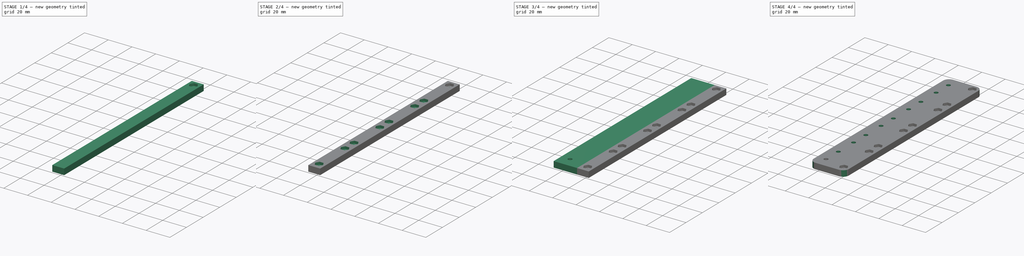
[diagram: build sequence overview — one tinted view per stage of 4, left to right]
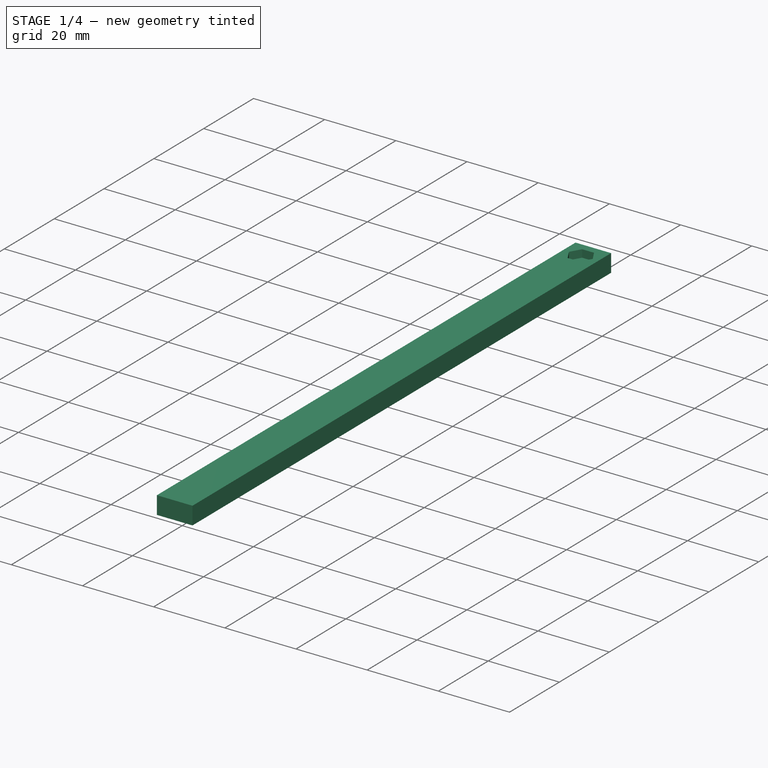
[diagram: stage 1 of 4 — iso view after this stage's code; geometry added in this stage tinted green]
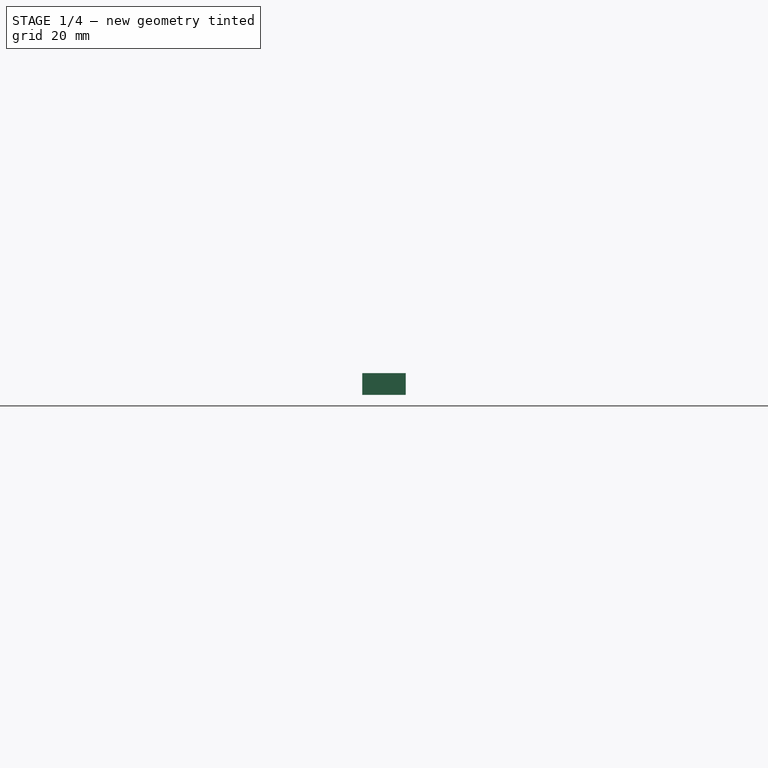
[diagram: stage 1 of 4 — front view after this stage's code; geometry added in this stage tinted green]
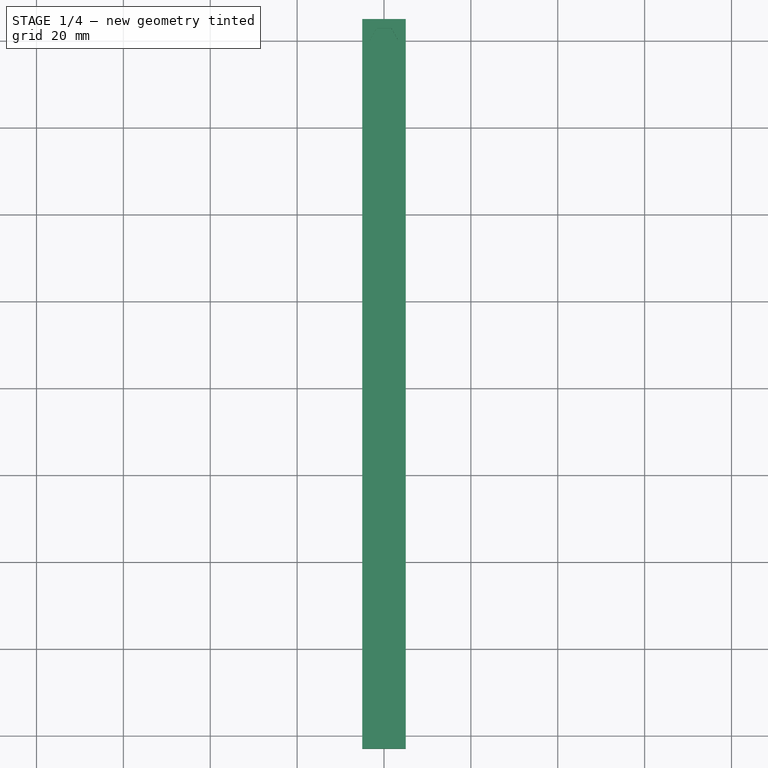
[diagram: stage 1 of 4 — top view after this stage's code; geometry added in this stage tinted green]
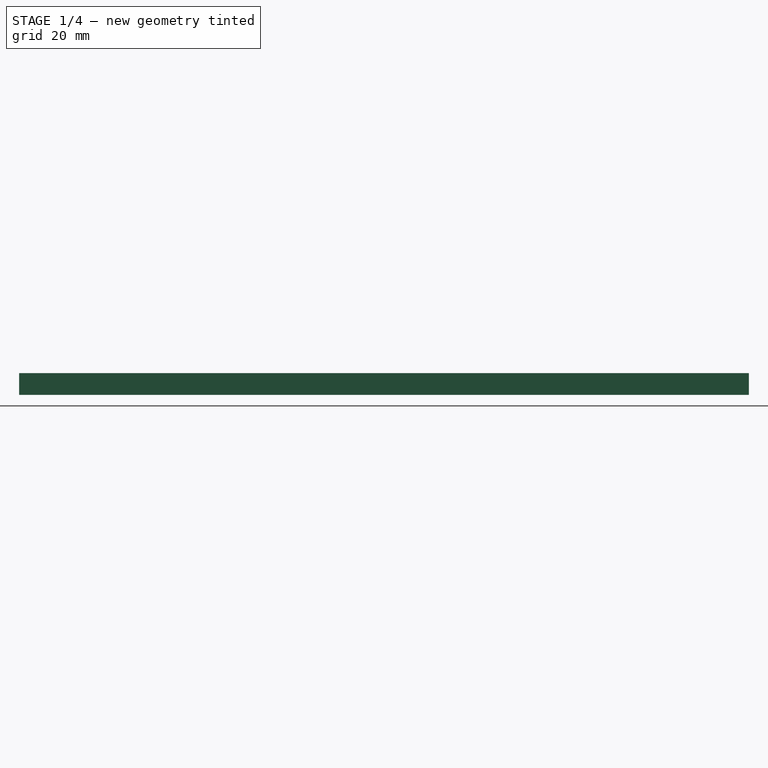
[diagram: stage 1 of 4 — right view after this stage's code; geometry added in this stage tinted green]
FCSTD DOCUMENT  (FreeCAD 0.19R)
Label: Rack_with_M3
License: All rights reserved
LicenseURL: http://en.wikipedia.org/wiki/All_rights_reserved
objects: Sketcher::SketchObject×6, PartDesign::LinearPattern×4, PartDesign::Pad×2, PartDesign::Pocket×2, PartDesign::Hole×2, PartDesign::MultiTransform×2, PartDesign::Fillet×1, PartDesign::Body×1
note: 27 computed .brp shape members not serialized (recipe doc carries the construction recipe); baked Part::Feature solids carry a one-line shape summary decoded from their .brp

FEATURE [Sketcher::SketchObject] Sketch  label="rod_base_sketch"
  FullyConstrained = true
  MapMode = 5
  Support = -> [XY_Plane]
  sketch-geometry (4):
    g0: LineSegment StartX=-5 StartY=5 StartZ=0 EndX=5 EndY=5 EndZ=0
    g1: LineSegment StartX=5 StartY=5 StartZ=0 EndX=5 EndY=-163 EndZ=0
    g2: LineSegment StartX=5 StartY=-163 StartZ=0 EndX=-5 EndY=-163 EndZ=0
    g3: LineSegment StartX=-5 StartY=-163 StartZ=0 EndX=-5 EndY=5 EndZ=0
  constraints (11):
    c: Coincident(g0,g1)
    c: Coincident(g1,g2)
    c: Coincident(g2,g3)
    c: Coincident(g3,g0)
    c: Horizontal(g2)
    c: Vertical(g1)
    c: Vertical(g3)
    c: Symmetric(g0,g0,g-2)
    c: DistanceX(g0,g0) = 10
    c: Distance(g-1,g0) = 5
    c: DistanceY(g1,g1) = 168
FEATURE [PartDesign::Pad] Pad  label="rod_base"
  Direction = (1,1,1)
  Length = 5
  Length2 = 100
  Profile = -> Sketch
  Type = 0
FEATURE [Sketcher::SketchObject] Sketch001  label="rod_M3_hex_sketch"
  FullyConstrained = true
  MapMode = 5
  Placement = pos=(0,0,5) rot=(0,0,1;0rad)
  Support = -> [Pad]
  sketch-geometry (7):
    g0: LineSegment StartX=3.34863 StartY=0 StartZ=0 EndX=1.67432 EndY=2.9 EndZ=0
    g1: LineSegment StartX=1.67432 StartY=2.9 StartZ=0 EndX=-1.67432 EndY=2.9 EndZ=0
    g2: LineSegment StartX=-1.67432 StartY=2.9 StartZ=0 EndX=-3.34863 EndY=2.09e-14 EndZ=0
    g3: LineSegment StartX=-3.34863 StartY=2.1e-14 StartZ=0 EndX=-1.67432 EndY=-2.9 EndZ=0
    g4: LineSegment StartX=-1.67432 StartY=-2.9 StartZ=0 EndX=1.67432 EndY=-2.9 EndZ=0
    g5: LineSegment StartX=1.67432 StartY=-2.9 StartZ=0 EndX=3.34863 EndY=0 EndZ=0
    g6: Circle CenterX=0 CenterY=0 CenterZ=0 NormalX=0 NormalY=0 NormalZ=1 AngleXU=0 Radius=3.34863
  constraints (16):
    c: Coincident(g0,g1)
    c: Coincident(g1,g2)
    c: Coincident(g2,g3)
    c: Coincident(g3,g4)
    c: Coincident(g4,g5)
    c: Coincident(g5,g0)
    c: Equal(g0, g1-g5) x5
    c: PointOnObject(g0,g6)
    c: PointOnObject(g1,g6)
    c: PointOnObject(g2,g6)
    c: PointOnObject(g3,g6)
    c: PointOnObject(g4,g6)
    c: PointOnObject(g5,g6)
    c: Coincident(g6,g-1)
    c: PointOnObject(g5,g-1)
    c: DistanceY(g4,g0) = 5.8
FEATURE [PartDesign::Pocket] Pocket  label="rod_M3_hex"
  BaseFeature = -> Pad
  Length = 2.15
  Length2 = 100
  Profile = -> Sketch001
  Type = 0
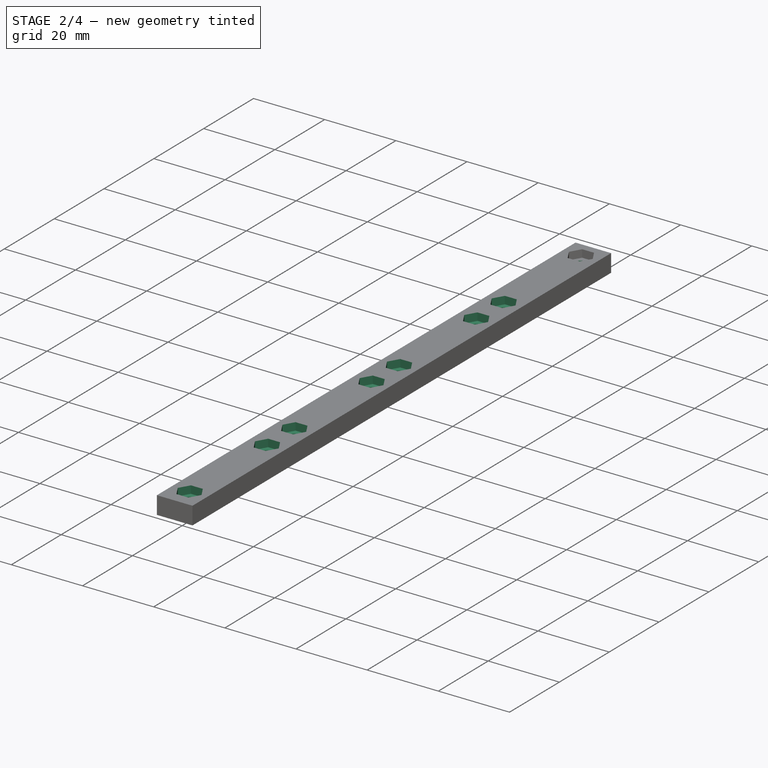
[diagram: stage 2 of 4 — iso view after this stage's code; geometry added in this stage tinted green]
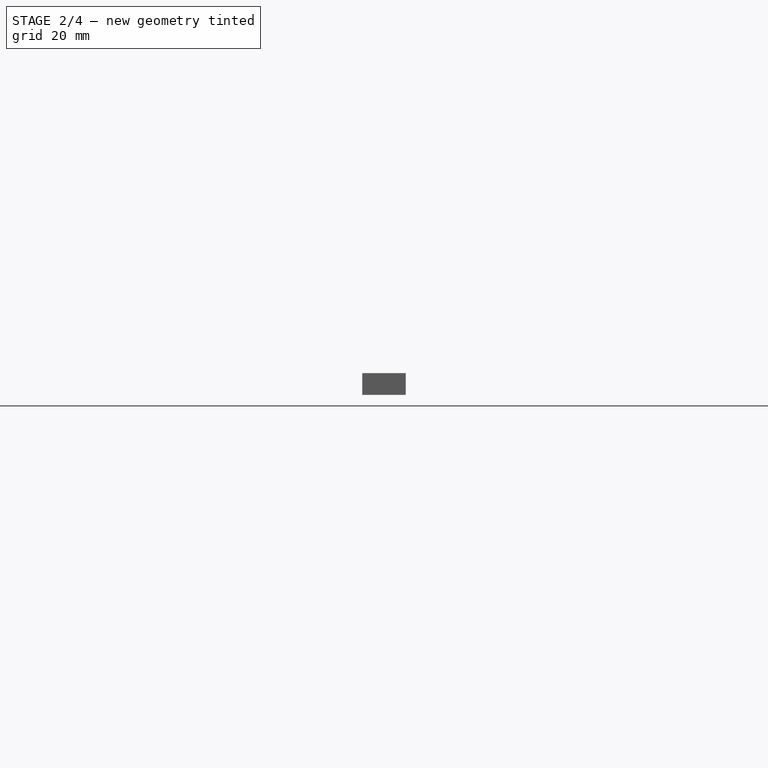
[diagram: stage 2 of 4 — front view after this stage's code; geometry added in this stage tinted green]
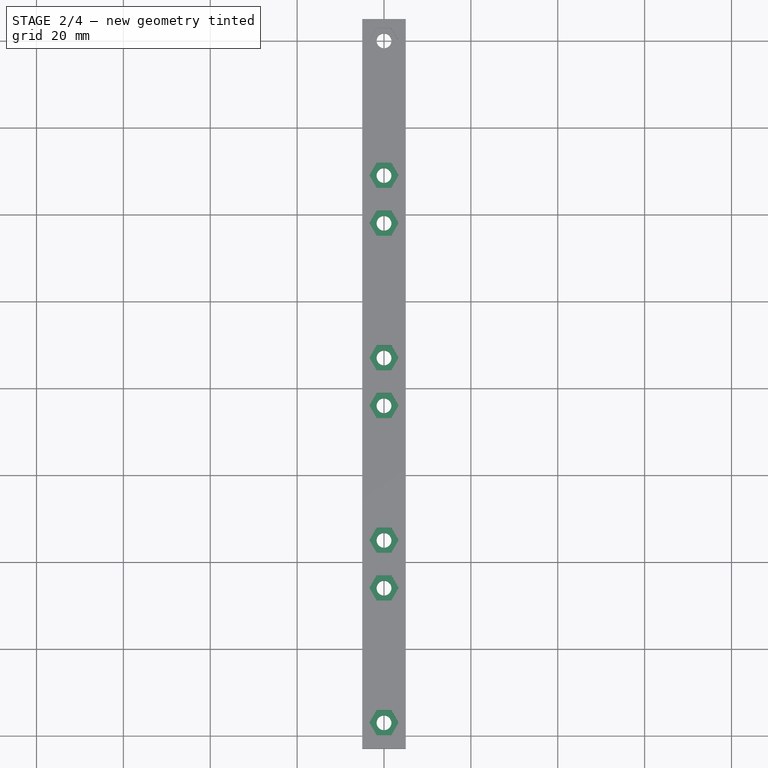
[diagram: stage 2 of 4 — top view after this stage's code; geometry added in this stage tinted green]
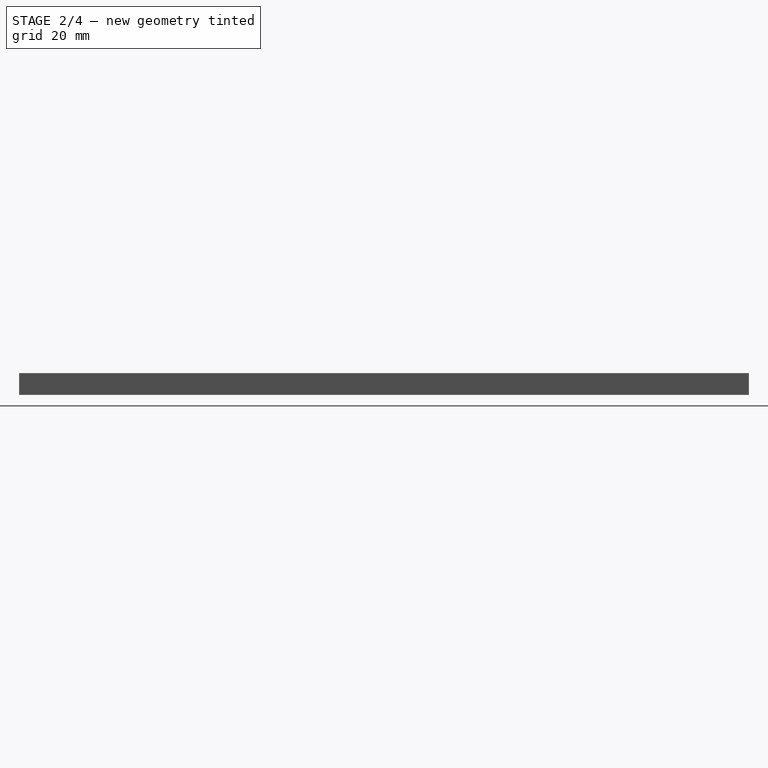
[diagram: stage 2 of 4 — right view after this stage's code; geometry added in this stage tinted green]
FEATURE [Sketcher::SketchObject] Sketch002  label="rod_M3_hole_sketch"
  FullyConstrained = true
  MapMode = 5
  Placement = pos=(0,0,2.85) rot=(0,0,1;0rad)
  Support = -> [Pocket]
  sketch-geometry (1):
    g0: Circle CenterX=0 CenterY=0 CenterZ=0 NormalX=0 NormalY=0 NormalZ=1 AngleXU=0 Radius=1.7
  constraints (2):
    c: Coincident(g0,g-1)
    c: Radius(g0) = 1.7
FEATURE [PartDesign::Hole] Hole  label="rod_M3_hole"
  BaseFeature = -> Pocket
  Depth = 25
  DepthType = 1
  Diameter = 3.4
  DrillForDepth = false
  DrillPoint = 1
  DrillPointAngle = 118
  HoleCutCountersinkAngle = 90
  HoleCutCustomValues = false
  HoleCutDepth = 0
  HoleCutDiameter = 6.1
  HoleCutType = 0
  ModelActualThread = false
  Profile = -> Sketch002
  Tapered = false
  TaperedAngle = 90
  ThreadAngle = 0
  ThreadClass = 0
  ThreadCutOffInner = 0
  ThreadCutOffOuter = 0
  ThreadDirection = 0
  ThreadFit = 0
  ThreadPitch = 0
  ThreadSize = 9
  ThreadType = 1
  Threaded = false
FEATURE [PartDesign::LinearPattern] LinearPattern
  Direction = -> Y_Axis
  Length = 31
  Occurrences = 2
  Reversed = true
FEATURE [PartDesign::LinearPattern] LinearPattern001
  Direction = -> Y_Axis
  Length = 126
  Occurrences = 4
  Reversed = true
FEATURE [PartDesign::MultiTransform] MultiTransform  label="rod_M3_system"
  BaseFeature = -> Hole
  Originals = -> [Pocket,Hole]
  Transformations = -> [LinearPattern,LinearPattern001]
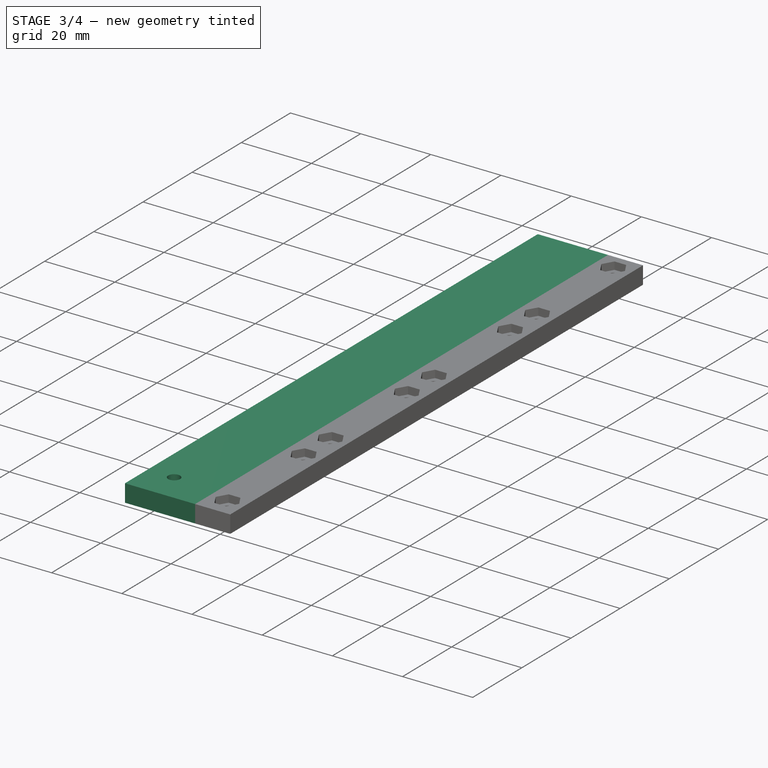
[diagram: stage 3 of 4 — iso view after this stage's code; geometry added in this stage tinted green]
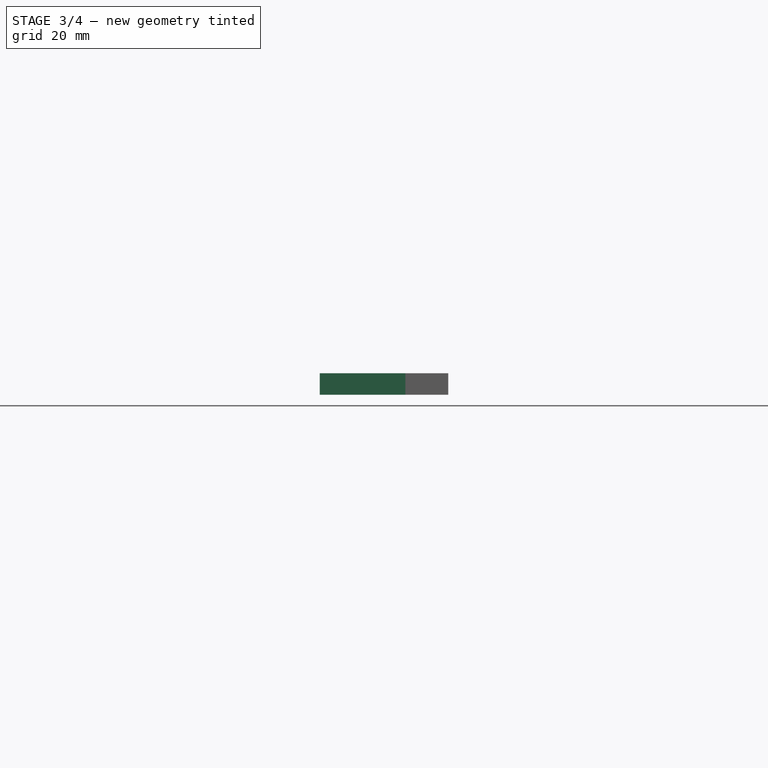
[diagram: stage 3 of 4 — front view after this stage's code; geometry added in this stage tinted green]
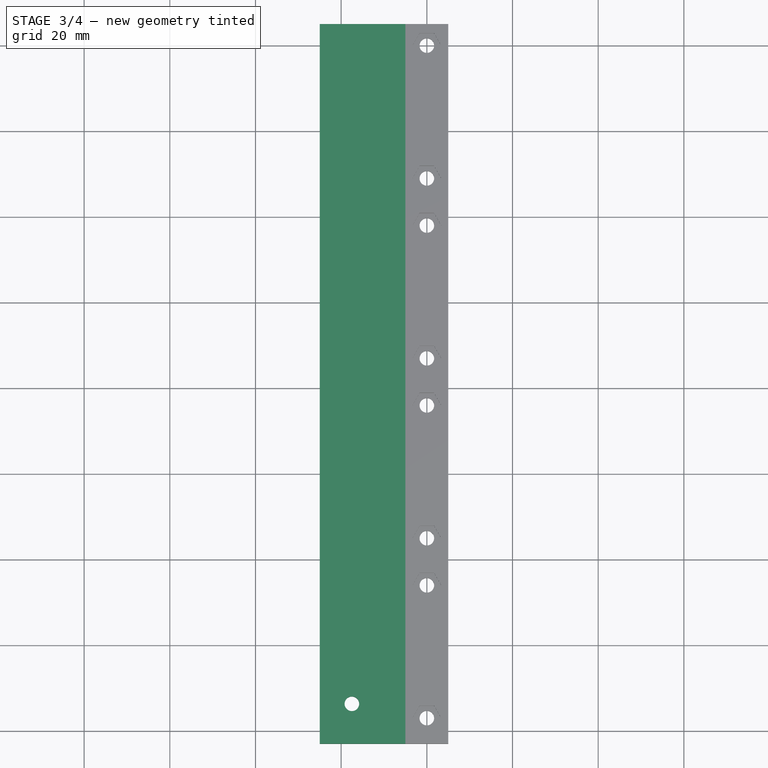
[diagram: stage 3 of 4 — top view after this stage's code; geometry added in this stage tinted green]
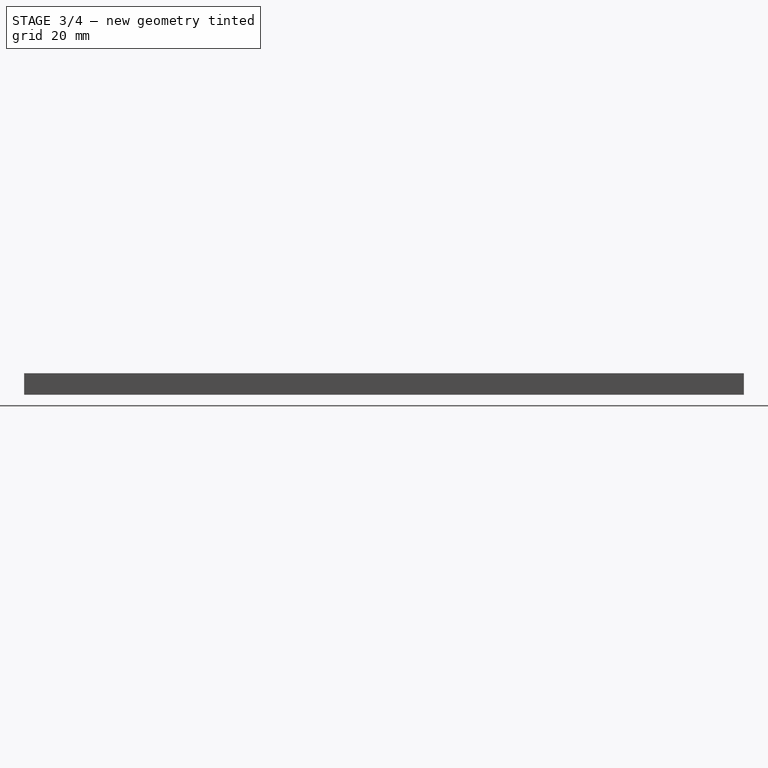
[diagram: stage 3 of 4 — right view after this stage's code; geometry added in this stage tinted green]
FEATURE [Sketcher::SketchObject] Sketch003  label="connector_base_sketch"
  ExternalGeometry = -> [MultiTransform]
  FullyConstrained = true
  MapMode = 5
  Placement = pos=(-5,0,0) rot=(0.57735,-0.57735,-0.57735;2.0944rad)
  Support = -> [MultiTransform]
  sketch-geometry (4):
    g0: LineSegment StartX=-5 StartY=0 StartZ=0 EndX=163 EndY=0 EndZ=0
    g1: LineSegment StartX=163 StartY=0 StartZ=0 EndX=163 EndY=5 EndZ=0
    g2: LineSegment StartX=163 StartY=5 StartZ=0 EndX=-5 EndY=5 EndZ=0
    g3: LineSegment StartX=-5 StartY=5 StartZ=0 EndX=-5 EndY=0 EndZ=0
  constraints (10):
    c: Coincident(g0,g1)
    c: Coincident(g1,g2)
    c: Coincident(g2,g3)
    c: Coincident(g3,g0)
    c: Horizontal(g0)
    c: Horizontal(g2)
    c: Vertical(g1)
    c: Vertical(g3)
    c: Coincident(g0,g-3)
    c: Coincident(g1,g-4)
FEATURE [PartDesign::Pad] Pad001  label="connector_base"
  BaseFeature = -> MultiTransform
  Direction = (1,1,1)
  Length = 20
  Length2 = 100
  Profile = -> Sketch003
  Type = 0
FEATURE [Sketcher::SketchObject] Sketch004  label="connector_M3_hex_sketch"
  ExternalGeometry = -> [Pad001]
  FullyConstrained = true
  MapMode = 5
  Placement = pos=(0,0,0) rot=(1,0,0;3.14159rad)
  Support = -> [Pad001]
  sketch-geometry (7):
    g0: LineSegment StartX=-14.1514 StartY=153.7 StartZ=0 EndX=-15.8257 EndY=156.6 EndZ=0
    g1: LineSegment StartX=-15.8257 StartY=156.6 StartZ=0 EndX=-19.1743 EndY=156.6 EndZ=0
    g2: LineSegment StartX=-19.1743 StartY=156.6 StartZ=0 EndX=-20.8486 EndY=153.7 EndZ=0
    g3: LineSegment StartX=-20.8486 StartY=153.7 StartZ=0 EndX=-19.1743 EndY=150.8 EndZ=0
    g4: LineSegment StartX=-19.1743 StartY=150.8 StartZ=0 EndX=-15.8257 EndY=150.8 EndZ=0
    g5: LineSegment StartX=-15.8257 StartY=150.8 StartZ=0 EndX=-14.1514 EndY=153.7 EndZ=0
    g6: Circle CenterX=-17.5 CenterY=153.7 CenterZ=0 NormalX=0 NormalY=0 NormalZ=1 AngleXU=0 Radius=3.34863
  constraints (17):
    c: Coincident(g0,g1)
    c: Coincident(g1,g2)
    c: Coincident(g2,g3)
    c: Coincident(g3,g4)
    c: Coincident(g4,g5)
    c: Coincident(g5,g0)
    c: Equal(g0, g1-g5) x5
    c: PointOnObject(g0,g6)
    c: PointOnObject(g1,g6)
    c: PointOnObject(g2,g6)
    c: PointOnObject(g3,g6)
    c: PointOnObject(g4,g6)
    c: PointOnObject(g5,g6)
    c: Distance(g6,g-3) = 9.3
    c: Distance(g6,g-4) = 7.5
    c: Horizontal(g2,g6)
    c: DistanceY(g3,g1) = 5.8
FEATURE [PartDesign::Pocket] Pocket001  label="connector_M3_hex"
  BaseFeature = -> Pad001
  Length = 2.15
  Length2 = 100
  Profile = -> Sketch004
  Type = 0
FEATURE [Sketcher::SketchObject] Sketch005  label="connector_M3_hole_sketch"
  ExternalGeometry = -> [Pocket001]
  FullyConstrained = true
  MapMode = 5
  Placement = pos=(0,0,2.15) rot=(1,0,0;3.14159rad)
  Support = -> [Pocket001]
  sketch-geometry (1):
    g0: Circle CenterX=-17.5 CenterY=153.7 CenterZ=0 NormalX=0 NormalY=0 NormalZ=1 AngleXU=0 Radius=1.7
  constraints (2):
    c: Symmetric(g-3,g-4,g0)
    c: Radius(g0) = 1.7
FEATURE [PartDesign::Hole] Hole001  label="connector_M3_hole"
  BaseFeature = -> Pocket001
  Depth = 25
  DepthType = 1
  Diameter = 3.4
  DrillForDepth = false
  DrillPoint = 1
  DrillPointAngle = 118
  HoleCutCountersinkAngle = 90
  HoleCutCustomValues = false
  HoleCutDepth = 0
  HoleCutDiameter = 6.1
  HoleCutType = 0
  ModelActualThread = false
  Profile = -> Sketch005
  Tapered = false
  TaperedAngle = 90
  ThreadAngle = 0
  ThreadClass = 0
  ThreadCutOffInner = 0
  ThreadCutOffOuter = 0
  ThreadDirection = 0
  ThreadFit = 0
  ThreadPitch = 0
  ThreadSize = 9
  ThreadType = 1
  Threaded = false
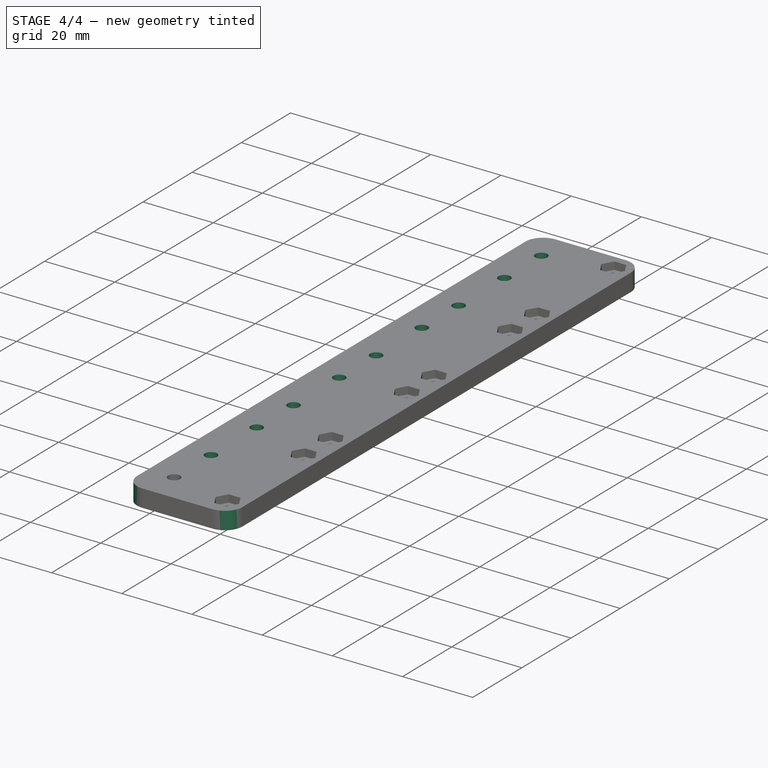
[diagram: stage 4 of 4 — iso view after this stage's code; geometry added in this stage tinted green]
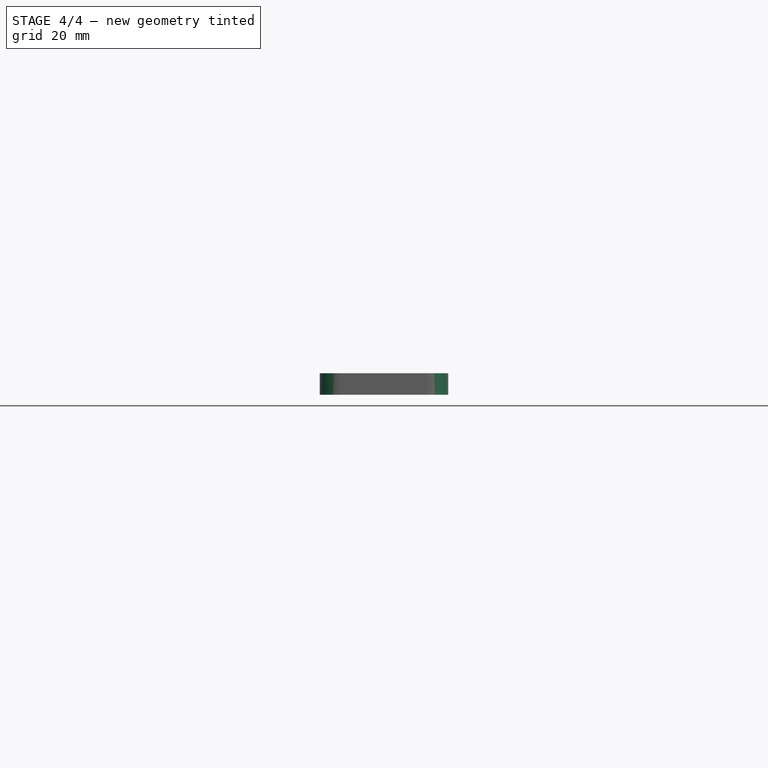
[diagram: stage 4 of 4 — front view after this stage's code; geometry added in this stage tinted green]
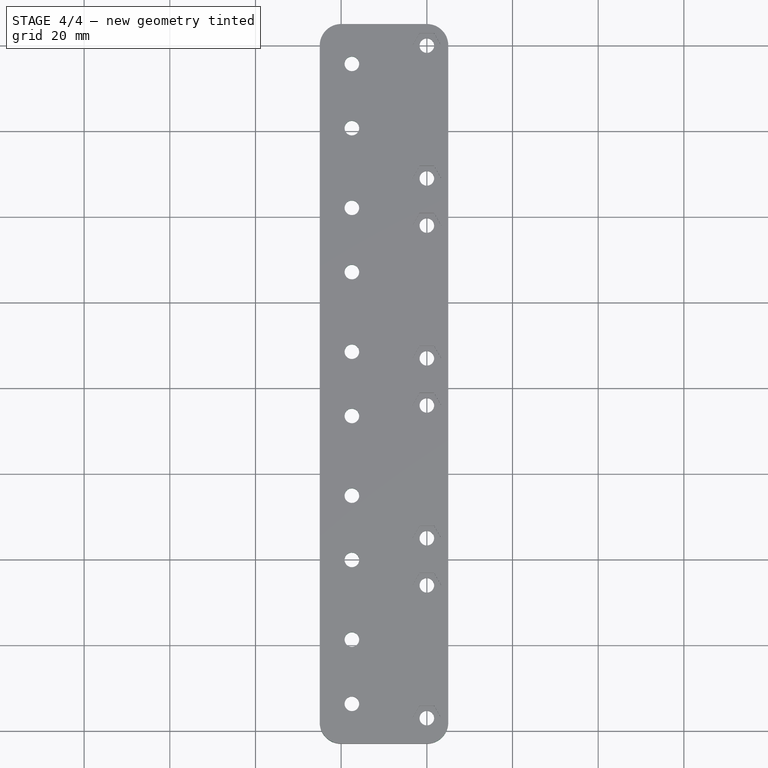
[diagram: stage 4 of 4 — top view after this stage's code; geometry added in this stage tinted green]
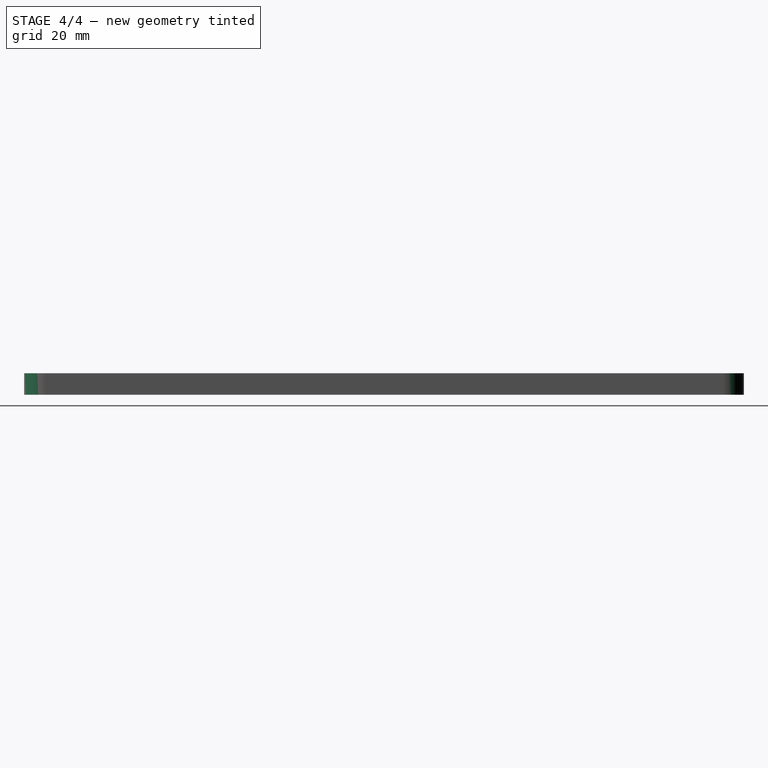
[diagram: stage 4 of 4 — right view after this stage's code; geometry added in this stage tinted green]
FEATURE [PartDesign::LinearPattern] LinearPattern002
  Direction = -> Y_Axis
  Length = 15
  Occurrences = 2
FEATURE [PartDesign::LinearPattern] LinearPattern003
  Direction = -> Y_Axis
  Length = 134.4
  Occurrences = 5
FEATURE [PartDesign::MultiTransform] MultiTransform001  label="connector_M3_system"
  BaseFeature = -> Hole001
  Originals = -> [Pocket001,Hole001]
  Transformations = -> [LinearPattern002,LinearPattern003]
FEATURE [PartDesign::Fillet] Fillet  label="corner_fillet"
  Base = -> MultiTransform001 [Edge8,Edge145,Edge2,Edge7]
  BaseFeature = -> MultiTransform001
  Radius = 5
  SupportTransform = false
FEATURE [PartDesign::Body] Body  label="Rack_with_M3"
  Group = -> [Sketch,Pad,Sketch001,Pocket,Sketch002,Hole,MultiTransform,LinearPattern,LinearPattern001,Sketch003,Pad001,Sketch004,Pocket001,Sketch005,Hole001,MultiTransform001,LinearPattern002,LinearPattern003,Fillet]
  Origin = -> Origin
  Tip = -> Fillet
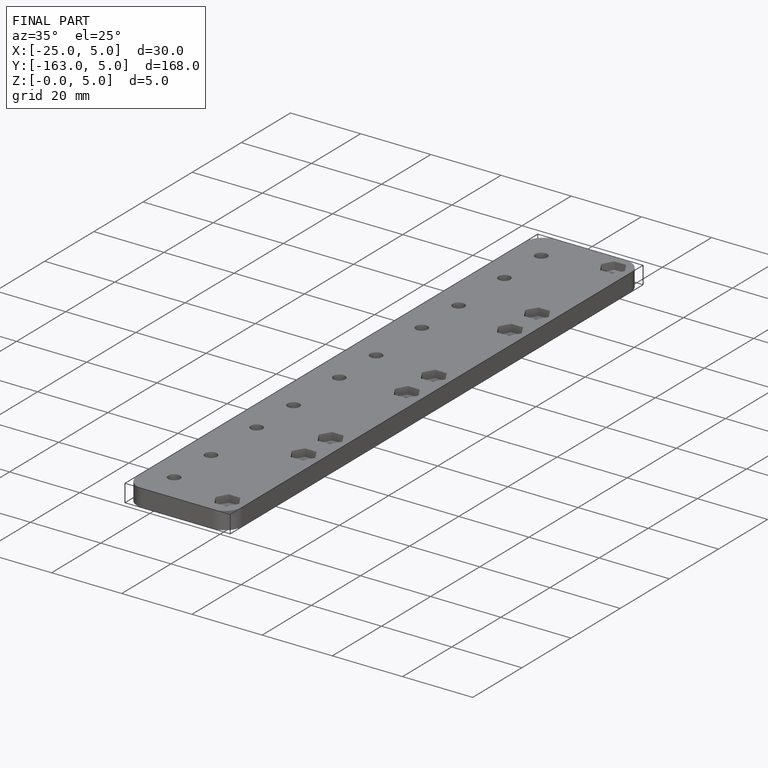
[diagram: finished part — iso view with bounding-box wireframe]
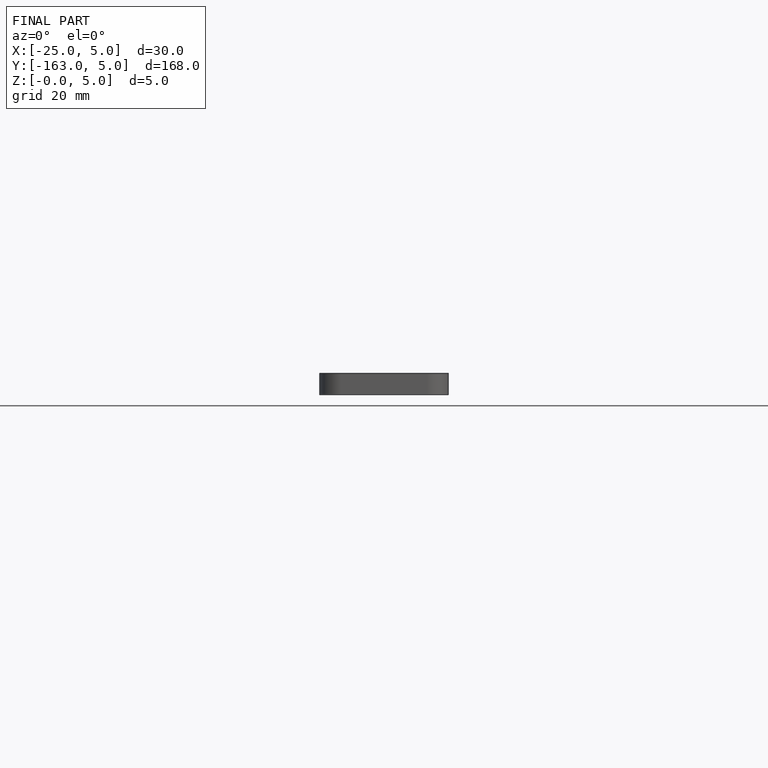
[diagram: finished part — front view with bounding-box wireframe]
